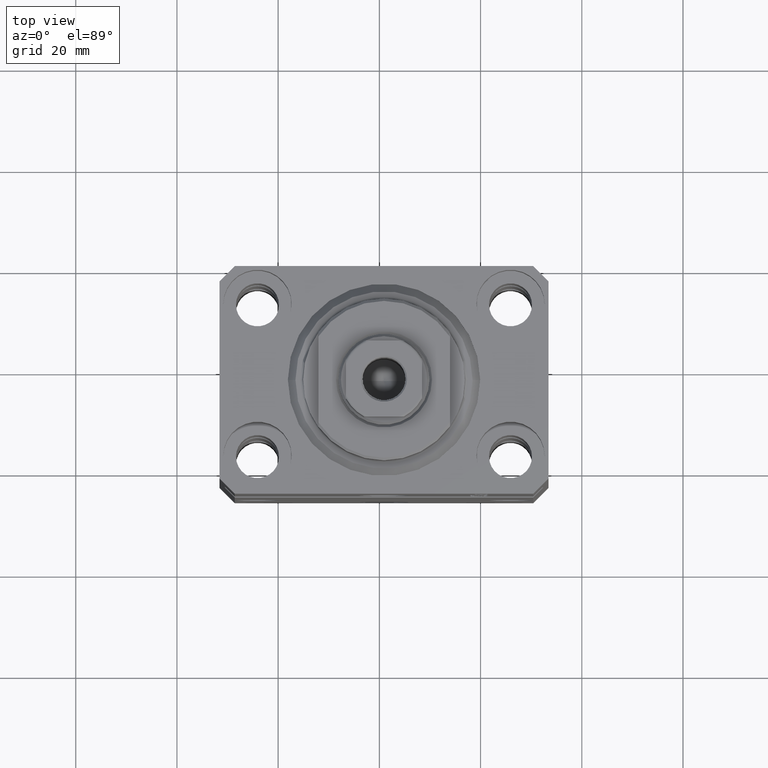
[diagram: clean part render]
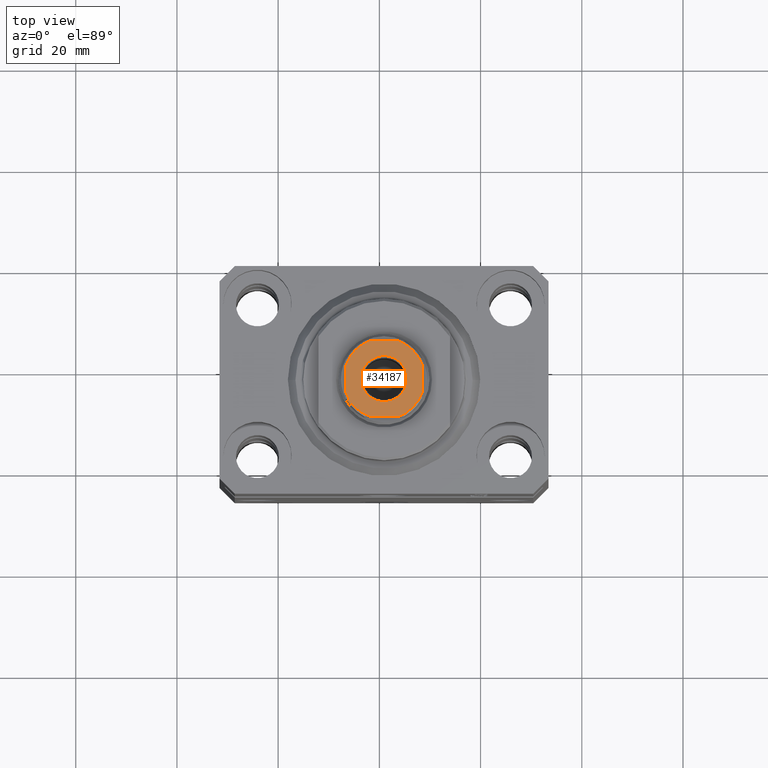
[diagram: same view with one face highlighted and labeled with its STEP entity id]
A machine part, top view. The second image highlights one B-rep face of the part: STEP entity #34187.
In plain terms, the highlighted planar face has unit normal (0, 0, 1).
Its self-contained STEP definition (entity closure, byte-faithful):
#215 = CARTESIAN_POINT ( 'NONE',  ( -7.499999999999998224, 2.783882181415015644, 114.1000000000000085 ) ) ;
#1458 = CIRCLE ( 'NONE', #34516, 8.000000000000000000 ) ;
#1487 = CARTESIAN_POINT ( 'NONE',  ( -7.499999999999998224, 7.499999999999999112, 114.1000000000000085 ) ) ;
#2283 = VECTOR ( 'NONE', #5526, 1000.000000000000000 ) ;
#2301 = ORIENTED_EDGE ( 'NONE', *, *, #18367, .T. ) ;
#2612 = DIRECTION ( 'NONE',  ( 1.000000000000000000, 0.000000000000000000, 0.000000000000000000 ) ) ;
#3306 = CIRCLE ( 'NONE', #12131, 8.000000000000000000 ) ;
#4421 = CARTESIAN_POINT ( 'NONE',  ( 0.000000000000000000, 0.000000000000000000, 114.1000000000000085 ) ) ;
#4776 = EDGE_CURVE ( 'NONE', #27426, #32993, #32550, .T. ) ;
#5362 = PLANE ( 'NONE',  #14707 ) ;
#5410 = CARTESIAN_POINT ( 'NONE',  ( 0.000000000000000000, 0.000000000000000000, 114.1000000000000085 ) ) ;
#5526 = DIRECTION ( 'NONE',  ( 5.782411586589357392E-17, -1.000000000000000000, 0.000000000000000000 ) ) ;
#5540 = EDGE_CURVE ( 'NONE', #22741, #27459, #22424, .T. ) ;
#5973 = ORIENTED_EDGE ( 'NONE', *, *, #33705, .T. ) ;
#6415 = CIRCLE ( 'NONE', #29180, 4.549999999999970512 ) ;
#7817 = VERTEX_POINT ( 'NONE', #38840 ) ;
#8108 = EDGE_LOOP ( 'NONE', ( #28705, #20238, #9196, #38612, #43508, #5973, #39062, #2301 ) ) ;
#8230 = DIRECTION ( 'NONE',  ( -0.000000000000000000, 0.000000000000000000, 1.000000000000000000 ) ) ;
#9196 = ORIENTED_EDGE ( 'NONE', *, *, #14100, .T. ) ;
#9302 = EDGE_CURVE ( 'NONE', #27743, #7817, #15869, .T. ) ;
#9353 = LINE ( 'NONE', #13497, #27830 ) ;
#9549 = CARTESIAN_POINT ( 'NONE',  ( -2.783882181415013868, 7.499999999999999112, 114.1000000000000085 ) ) ;
#10540 = CARTESIAN_POINT ( 'NONE',  ( -7.499999999999998224, -2.783882181415016088, 114.1000000000000085 ) ) ;
#12131 = AXIS2_PLACEMENT_3D ( 'NONE', #28168, #24262, #27719 ) ;
#12404 = EDGE_LOOP ( 'NONE', ( #17841, #37169 ) ) ;
#12742 = DIRECTION ( 'NONE',  ( -0.000000000000000000, 0.000000000000000000, 1.000000000000000000 ) ) ;
#13497 = CARTESIAN_POINT ( 'NONE',  ( -7.499999999999997335, -7.500000000000000888, 114.1000000000000085 ) ) ;
#14100 = EDGE_CURVE ( 'NONE', #37485, #25261, #9353, .T. ) ;
#14707 = AXIS2_PLACEMENT_3D ( 'NONE', #36637, #12742, #2612 ) ;
#15317 = CARTESIAN_POINT ( 'NONE',  ( 7.500000000000001776, 7.500000000000000000, 114.1000000000000085 ) ) ;
#15771 = DIRECTION ( 'NONE',  ( 1.000000000000000000, 0.000000000000000000, 0.000000000000000000 ) ) ;
#15869 = CIRCLE ( 'NONE', #42318, 4.549999999999970512 ) ;
#15891 = CARTESIAN_POINT ( 'NONE',  ( -7.499999999999998224, 7.499999999999999112, 114.1000000000000085 ) ) ;
#15956 = FACE_OUTER_BOUND ( 'NONE', #8108, .T. ) ;
#17202 = CARTESIAN_POINT ( 'NONE',  ( 0.000000000000000000, 0.000000000000000000, 114.1000000000000085 ) ) ;
#17435 = DIRECTION ( 'NONE',  ( 1.000000000000000000, 0.000000000000000000, 0.000000000000000000 ) ) ;
#17561 = VERTEX_POINT ( 'NONE', #10540 ) ;
#17841 = ORIENTED_EDGE ( 'NONE', *, *, #26942, .T. ) ;
#18367 = EDGE_CURVE ( 'NONE', #32993, #20611, #3306, .T. ) ;
#19575 = EDGE_CURVE ( 'NONE', #17561, #37485, #42989, .T. ) ;
#20238 = ORIENTED_EDGE ( 'NONE', *, *, #19575, .T. ) ;
#20298 = CARTESIAN_POINT ( 'NONE',  ( -4.549999999999970512, 5.572142936120421828E-16, 114.1000000000000085 ) ) ;
#20611 = VERTEX_POINT ( 'NONE', #215 ) ;
#21415 = DIRECTION ( 'NONE',  ( 0.000000000000000000, -0.000000000000000000, -1.000000000000000000 ) ) ;
#21641 = DIRECTION ( 'NONE',  ( 1.000000000000000000, 0.000000000000000000, 0.000000000000000000 ) ) ;
#21676 = DIRECTION ( 'NONE',  ( 1.000000000000000000, 0.000000000000000000, 0.000000000000000000 ) ) ;
#22424 = LINE ( 'NONE', #15317, #29023 ) ;
#22741 = VERTEX_POINT ( 'NONE', #40907 ) ;
#22930 = CARTESIAN_POINT ( 'NONE',  ( 2.783882181415012980, 7.500000000000000000, 114.1000000000000085 ) ) ;
#24093 = CIRCLE ( 'NONE', #27772, 8.000000000000000000 ) ;
#24262 = DIRECTION ( 'NONE',  ( -0.000000000000000000, 0.000000000000000000, 1.000000000000000000 ) ) ;
#25061 = CARTESIAN_POINT ( 'NONE',  ( 0.000000000000000000, 0.000000000000000000, 114.1000000000000085 ) ) ;
#25134 = DIRECTION ( 'NONE',  ( -0.000000000000000000, 0.000000000000000000, 1.000000000000000000 ) ) ;
#25261 = VERTEX_POINT ( 'NONE', #45131 ) ;
#26130 = DIRECTION ( 'NONE',  ( 0.000000000000000000, -0.000000000000000000, -1.000000000000000000 ) ) ;
#26942 = EDGE_CURVE ( 'NONE', #7817, #27743, #6415, .T. ) ;
#27426 = VERTEX_POINT ( 'NONE', #22930 ) ;
#27459 = VERTEX_POINT ( 'NONE', #36497 ) ;
#27719 = DIRECTION ( 'NONE',  ( 1.000000000000000000, 0.000000000000000000, 0.000000000000000000 ) ) ;
#27743 = VERTEX_POINT ( 'NONE', #20298 ) ;
#27772 = AXIS2_PLACEMENT_3D ( 'NONE', #25061, #8230, #39076 ) ;
#27830 = VECTOR ( 'NONE', #30293, 1000.000000000000000 ) ;
#28168 = CARTESIAN_POINT ( 'NONE',  ( 0.000000000000000000, 0.000000000000000000, 114.1000000000000085 ) ) ;
#28705 = ORIENTED_EDGE ( 'NONE', *, *, #36709, .T. ) ;
#28955 = EDGE_CURVE ( 'NONE', #25261, #22741, #24093, .T. ) ;
#29023 = VECTOR ( 'NONE', #29334, 1000.000000000000000 ) ;
#29180 = AXIS2_PLACEMENT_3D ( 'NONE', #40010, #21415, #21641 ) ;
#29334 = DIRECTION ( 'NONE',  ( 1.156482317317871478E-16, 1.000000000000000000, -0.000000000000000000 ) ) ;
#30293 = DIRECTION ( 'NONE',  ( 1.000000000000000000, 5.782411586589358625E-17, 0.000000000000000000 ) ) ;
#32550 = LINE ( 'NONE', #1487, #45119 ) ;
#32993 = VERTEX_POINT ( 'NONE', #9549 ) ;
#33705 = EDGE_CURVE ( 'NONE', #27459, #27426, #1458, .T. ) ;
#34187 = ADVANCED_FACE ( 'NONE', ( #40328, #15956 ), #5362, .T. ) ;
#34516 = AXIS2_PLACEMENT_3D ( 'NONE', #17202, #35117, #17435 ) ;
#35117 = DIRECTION ( 'NONE',  ( -0.000000000000000000, 0.000000000000000000, 1.000000000000000000 ) ) ;
#36361 = LINE ( 'NONE', #15891, #2283 ) ;
#36497 = CARTESIAN_POINT ( 'NONE',  ( 7.500000000000000888, 2.783882181415007206, 114.1000000000000085 ) ) ;
#36637 = CARTESIAN_POINT ( 'NONE',  ( 0.000000000000000000, 0.000000000000000000, 114.1000000000000085 ) ) ;
#36709 = EDGE_CURVE ( 'NONE', #20611, #17561, #36361, .T. ) ;
#37169 = ORIENTED_EDGE ( 'NONE', *, *, #9302, .T. ) ;
#37485 = VERTEX_POINT ( 'NONE', #42159 ) ;
#38612 = ORIENTED_EDGE ( 'NONE', *, *, #28955, .T. ) ;
#38840 = CARTESIAN_POINT ( 'NONE',  ( 4.549999999999970512, 0.000000000000000000, 114.1000000000000085 ) ) ;
#39062 = ORIENTED_EDGE ( 'NONE', *, *, #4776, .T. ) ;
#39076 = DIRECTION ( 'NONE',  ( 1.000000000000000000, 0.000000000000000000, 0.000000000000000000 ) ) ;
#39896 = DIRECTION ( 'NONE',  ( -1.000000000000000000, -5.782411586589357392E-17, -0.000000000000000000 ) ) ;
#40010 = CARTESIAN_POINT ( 'NONE',  ( 0.000000000000000000, 0.000000000000000000, 114.1000000000000085 ) ) ;
#40328 = FACE_BOUND ( 'NONE', #12404, .T. ) ;
#40795 = AXIS2_PLACEMENT_3D ( 'NONE', #4421, #25134, #21676 ) ;
#40907 = CARTESIAN_POINT ( 'NONE',  ( 7.500000000000000888, -2.783882181415009427, 114.1000000000000085 ) ) ;
#42159 = CARTESIAN_POINT ( 'NONE',  ( -2.783882181415010315, -7.500000000000000888, 114.1000000000000085 ) ) ;
#42318 = AXIS2_PLACEMENT_3D ( 'NONE', #5410, #26130, #15771 ) ;
#42989 = CIRCLE ( 'NONE', #40795, 8.000000000000000000 ) ;
#43508 = ORIENTED_EDGE ( 'NONE', *, *, #5540, .T. ) ;
#45119 = VECTOR ( 'NONE', #39896, 1000.000000000000000 ) ;
#45131 = CARTESIAN_POINT ( 'NONE',  ( 2.783882181415008539, -7.500000000000000888, 114.1000000000000085 ) ) ;